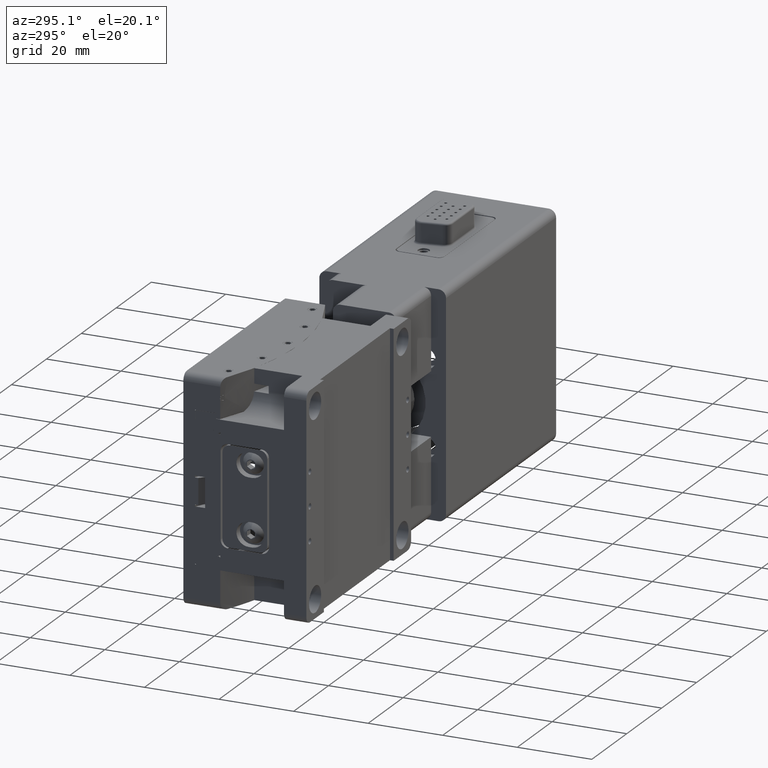
[diagram: clean part render]
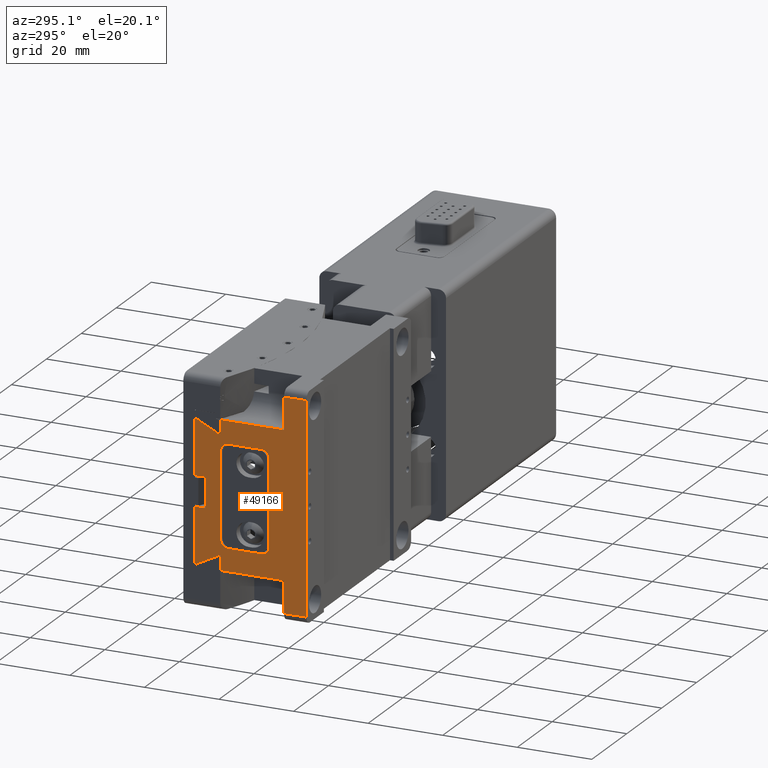
[diagram: same view with one face highlighted and labeled with its STEP entity id]
A machine part, auxiliary view. The second image highlights one B-rep face of the part: STEP entity #49166.
In plain terms, the highlighted planar face has unit normal (1, 0, -0).
Its self-contained STEP definition (entity closure, byte-faithful):
#384 = CARTESIAN_POINT ( 'NONE',  ( -30.00000000000000000, 29.82876183118324300, 18.79160260829803500 ) ) ;
#1066 = VERTEX_POINT ( 'NONE', #33756 ) ;
#1255 = CARTESIAN_POINT ( 'NONE',  ( -29.99999999999999600, 29.88691310044199100, 4.143132096829782900 ) ) ;
#1349 = B_SPLINE_CURVE_WITH_KNOTS ( 'NONE', 3,
 ( #28650, #1255, #32548, #9271, #36432, #13207 ),
 .UNSPECIFIED., .F., .F.,
 ( 4, 2, 4 ),
 ( 0.0000000000000000000, 0.0001680203975728009100, 0.0003360407951456018300 ),
 .UNSPECIFIED. ) ;
#1402 = EDGE_CURVE ( 'NONE', #34404, #7965, #38855, .T. ) ;
#1441 = LINE ( 'NONE', #41858, #31266 ) ;
#1633 = EDGE_CURVE ( 'NONE', #40146, #6005, #12021, .T. ) ;
#1671 = VERTEX_POINT ( 'NONE', #46538 ) ;
#1674 = CARTESIAN_POINT ( 'NONE',  ( -30.00000000000000000, 20.99999999999999300, 13.50000000000000500 ) ) ;
#1770 = CARTESIAN_POINT ( 'NONE',  ( -29.99999999999999600, 23.25954051063884300, 15.62250092524064900 ) ) ;
#2019 = CIRCLE ( 'NONE', #49117, 1.999999999999998200 ) ;
#2155 = CARTESIAN_POINT ( 'NONE',  ( -29.99999999999999600, 27.15202718325955500, 3.931512348025658600 ) ) ;
#2303 = VERTEX_POINT ( 'NONE', #12217 ) ;
#2326 = VECTOR ( 'NONE', #21740, 1000.000000000000000 ) ;
#2358 = CARTESIAN_POINT ( 'NONE',  ( -30.00000000000000000, 23.09173679699934200, 15.70910346561909400 ) ) ;
#2506 = CARTESIAN_POINT ( 'NONE',  ( -30.00000000000000000, 27.20039656257911900, -3.985538086874660400 ) ) ;
#2527 = CARTESIAN_POINT ( 'NONE',  ( -29.99999999999999600, 23.19350035432815500, 15.60883222420186900 ) ) ;
#2783 = CARTESIAN_POINT ( 'NONE',  ( -29.99999999999999600, 23.25954051063884300, 15.62250092524064900 ) ) ;
#2794 = EDGE_CURVE ( 'NONE', #2303, #28126, #33117, .T. ) ;
#2994 = CARTESIAN_POINT ( 'NONE',  ( -30.00000000000000000, 23.00000000000000000, 11.50000000000000700 ) ) ;
#3218 = DIRECTION ( 'NONE',  ( 1.000000000000000000, -0.0000000000000000000, -0.0000000000000000000 ) ) ;
#3242 = CARTESIAN_POINT ( 'NONE',  ( -30.00000000000000000, 29.88691310044199100, 18.65358983848622300 ) ) ;
#3365 = CARTESIAN_POINT ( 'NONE',  ( -30.00000000000000000, 23.23408914589533200, -15.61212078847258200 ) ) ;
#3495 = DIRECTION ( 'NONE',  ( 1.000000000000000000, 0.0000000000000000000, -5.782411586589357400E-017 ) ) ;
#3512 = EDGE_CURVE ( 'NONE', #9710, #15010, #39438, .T. ) ;
#3527 = CARTESIAN_POINT ( 'NONE',  ( -30.00000000000000000, 23.09493877761308400, -15.68534610609588900 ) ) ;
#3854 = LINE ( 'NONE', #32868, #24543 ) ;
#4216 = EDGE_CURVE ( 'NONE', #1066, #22411, #34407, .T. ) ;
#4324 = CARTESIAN_POINT ( 'NONE',  ( -30.00000000000000000, 29.88691310044340800, 18.69216112050026600 ) ) ;
#4420 = ORIENTED_EDGE ( 'NONE', *, *, #21067, .T. ) ;
#4501 = ORIENTED_EDGE ( 'NONE', *, *, #17549, .T. ) ;
#4905 = ORIENTED_EDGE ( 'NONE', *, *, #10533, .T. ) ;
#4942 = CARTESIAN_POINT ( 'NONE',  ( -30.00000000000000000, 23.09173679699934200, 15.70910346561909400 ) ) ;
#5011 = EDGE_CURVE ( 'NONE', #45067, #20928, #13636, .T. ) ;
#5658 = CARTESIAN_POINT ( 'NONE',  ( -30.00000000000000000, 27.44304595805752800, -17.76968412633774400 ) ) ;
#5786 = CARTESIAN_POINT ( 'NONE',  ( -30.00000000000000000, 27.14697859560325100, 3.900000000000000400 ) ) ;
#5813 = B_SPLINE_CURVE_WITH_KNOTS ( 'NONE', 3,
 ( #36763, #40678, #17448, #44593, #21360, #48495 ),
 .UNSPECIFIED., .F., .F.,
 ( 4, 2, 4 ),
 ( 0.0000000000000000000, 0.0002271808861381536100, 0.0004543617722763072200 ),
 .UNSPECIFIED. ) ;
#6005 = VERTEX_POINT ( 'NONE', #49323 ) ;
#6075 = CARTESIAN_POINT ( 'NONE',  ( -29.99999999999999600, 27.14743167860126100, 3.908925829503537000 ) ) ;
#6256 = CARTESIAN_POINT ( 'NONE',  ( -30.00000000000000000, 27.14881925433392200, -3.920576989425599700 ) ) ;
#6272 = CARTESIAN_POINT ( 'NONE',  ( -29.99999999999999600, 23.09706905963156500, 15.67859393707867900 ) ) ;
#6393 = ORIENTED_EDGE ( 'NONE', *, *, #6856, .T. ) ;
#6410 = EDGE_CURVE ( 'NONE', #20928, #40146, #28082, .T. ) ;
#6414 = CARTESIAN_POINT ( 'NONE',  ( -30.00000000000000000, 27.22274025308125200, -3.994304341477762600 ) ) ;
#6426 = CARTESIAN_POINT ( 'NONE',  ( -29.99999999999999600, 23.22039611183534200, 15.60946313980179000 ) ) ;
#6481 = EDGE_CURVE ( 'NONE', #17235, #22411, #8620, .T. ) ;
#6487 = EDGE_CURVE ( 'NONE', #6005, #9710, #43866, .T. ) ;
#6556 = EDGE_CURVE ( 'NONE', #15010, #28166, #32314, .T. ) ;
#6754 = FACE_BOUND ( 'NONE', #46488, .T. ) ;
#6856 = EDGE_CURVE ( 'NONE', #13424, #39945, #29198, .T. ) ;
#7266 = CARTESIAN_POINT ( 'NONE',  ( -30.00000000000000000, 23.20715932703486200, -15.60841626570686600 ) ) ;
#7400 = VECTOR ( 'NONE', #25170, 1000.000000000000000 ) ;
#7448 = CARTESIAN_POINT ( 'NONE',  ( -30.00000000000000000, 23.09173679699362600, -15.70111274314058700 ) ) ;
#7490 = CARTESIAN_POINT ( 'NONE',  ( -30.00000000000000000, 29.85740712550646900, -4.089019606198469600 ) ) ;
#7951 = EDGE_CURVE ( 'NONE', #42011, #7965, #5813, .T. ) ;
#7965 = VERTEX_POINT ( 'NONE', #25412 ) ;
#8042 = CARTESIAN_POINT ( 'NONE',  ( -30.00000000000000000, 11.99999999999999800, 13.49999999999999800 ) ) ;
#8507 = ORIENTED_EDGE ( 'NONE', *, *, #39506, .F. ) ;
#8620 = LINE ( 'NONE', #33460, #33528 ) ;
#9271 = CARTESIAN_POINT ( 'NONE',  ( -29.99999999999998900, 29.77033134698435300, 4.018313011705348700 ) ) ;
#9581 = AXIS2_PLACEMENT_3D ( 'NONE', #40997, #17762, #44895 ) ;
#9600 = DIRECTION ( 'NONE',  ( -0.0000000000000000000, -0.0000000000000000000, -1.000000000000000000 ) ) ;
#9710 = VERTEX_POINT ( 'NONE', #48535 ) ;
#9997 = CARTESIAN_POINT ( 'NONE',  ( -29.99999999999999600, 27.14697859560325800, 3.902979107184100500 ) ) ;
#10175 = CARTESIAN_POINT ( 'NONE',  ( -30.00000000000000000, 27.14697859560325100, -3.910217856197375500 ) ) ;
#10194 = CARTESIAN_POINT ( 'NONE',  ( -29.99999999999999600, 23.10572724413981000, 15.65967184553407400 ) ) ;
#10197 = DIRECTION ( 'NONE',  ( 0.0000000000000000000, -1.000000000000000000, 0.0000000000000000000 ) ) ;
#10237 = EDGE_CURVE ( 'NONE', #28126, #1066, #13924, .T. ) ;
#10344 = CARTESIAN_POINT ( 'NONE',  ( -30.00000000000000000, 27.24778222158201000, -4.000000000000000000 ) ) ;
#10362 = CARTESIAN_POINT ( 'NONE',  ( -29.99999999999999600, 23.24737415264343100, 15.61707600829463900 ) ) ;
#10533 = EDGE_CURVE ( 'NONE', #18400, #38058, #34490, .T. ) ;
#11120 = VECTOR ( 'NONE', #25486, 1000.000000000000000 ) ;
#11202 = CARTESIAN_POINT ( 'NONE',  ( -30.00000000000000000, 23.17988247154138300, -15.61137561039743300 ) ) ;
#11428 = CARTESIAN_POINT ( 'NONE',  ( -30.00000000000000000, 29.88691310044199100, -4.200000000000000200 ) ) ;
#11739 = EDGE_CURVE ( 'NONE', #1671, #33988, #1441, .T. ) ;
#11821 = ORIENTED_EDGE ( 'NONE', *, *, #36403, .T. ) ;
#12021 = CIRCLE ( 'NONE', #47819, 2.000000000000000000 ) ;
#12217 = CARTESIAN_POINT ( 'NONE',  ( -30.00000000000000000, 0.0000000000000000000, -27.99999999999999600 ) ) ;
#12402 = EDGE_CURVE ( 'NONE', #24706, #35753, #20227, .T. ) ;
#12454 = VECTOR ( 'NONE', #43407, 1000.000000000000000 ) ;
#12704 = CARTESIAN_POINT ( 'NONE',  ( -30.00000000000000000, 23.00000000000000000, 11.50000000000000700 ) ) ;
#12852 = EDGE_CURVE ( 'NONE', #18370, #45067, #41992, .T. ) ;
#12884 = VECTOR ( 'NONE', #41263, 1000.000000000000000 ) ;
#13061 = ORIENTED_EDGE ( 'NONE', *, *, #12402, .T. ) ;
#13094 = EDGE_CURVE ( 'NONE', #18400, #39945, #29502, .T. ) ;
#13207 = CARTESIAN_POINT ( 'NONE',  ( -29.99999999999999600, 29.65733414985710000, 4.000000000000003600 ) ) ;
#13339 = VERTEX_POINT ( 'NONE', #31803 ) ;
#13424 = VERTEX_POINT ( 'NONE', #4942 ) ;
#13636 = CIRCLE ( 'NONE', #48076, 1.999999999999998200 ) ;
#13757 = CARTESIAN_POINT ( 'NONE',  ( -29.99999999999999600, 27.21877876830454900, 3.993000038722833300 ) ) ;
#13818 = CARTESIAN_POINT ( 'NONE',  ( -30.00000000000000000, 6.000000000000001800, -30.00000000000000000 ) ) ;
#13846 = ORIENTED_EDGE ( 'NONE', *, *, #42181, .T. ) ;
#13924 = LINE ( 'NONE', #17817, #2326 ) ;
#14019 = CARTESIAN_POINT ( 'NONE',  ( -30.00000000000000000, 23.25954051063885000, -15.62250092524066700 ) ) ;
#14095 = CARTESIAN_POINT ( 'NONE',  ( -30.00000000000000000, 27.15227602506078600, -3.930192358446711300 ) ) ;
#14099 = VECTOR ( 'NONE', #45320, 1000.000000000000000 ) ;
#14115 = CARTESIAN_POINT ( 'NONE',  ( -29.99999999999999600, 23.11874681794241900, 15.64312259882215100 ) ) ;
#14284 = CARTESIAN_POINT ( 'NONE',  ( -29.99999999999999600, 23.25559443816881000, 15.62046495429304600 ) ) ;
#14286 = CARTESIAN_POINT ( 'NONE',  ( -30.00000000000000000, 4.959819536546780600E-015, -13.50000000000000000 ) ) ;
#14373 = CARTESIAN_POINT ( 'NONE',  ( -29.99999999999999600, 29.54263380973594300, 18.82679491924318100 ) ) ;
#14933 = CARTESIAN_POINT ( 'NONE',  ( -30.00000000000000000, 29.88691310044199100, 1.734723475976807100E-015 ) ) ;
#14942 = CARTESIAN_POINT ( 'NONE',  ( -30.00000000000000400, 23.24745365342869600, -15.61626472701709500 ) ) ;
#15010 = VERTEX_POINT ( 'NONE', #31979 ) ;
#15110 = CARTESIAN_POINT ( 'NONE',  ( -30.00000000000000000, 23.15268420370234600, -15.61912824753549100 ) ) ;
#15332 = CARTESIAN_POINT ( 'NONE',  ( -30.00000000000000000, 23.09173679699935600, -15.70910346561910800 ) ) ;
#15419 = CARTESIAN_POINT ( 'NONE',  ( -29.99999999999999600, 27.26051668700183600, 4.000000000000003600 ) ) ;
#15483 = VECTOR ( 'NONE', #44554, 1000.000000000000000 ) ;
#15877 = EDGE_LOOP ( 'NONE', ( #8507, #39351, #46351, #13846, #26696, #4501, #13061, #41607, #28474, #47377, #17009, #20400, #11821, #40325, #33817, #39837, #16934, #33547, #38172, #24862, #4420, #6393, #23758, #4905 ) ) ;
#15898 = CARTESIAN_POINT ( 'NONE',  ( -29.99999999999999600, 29.69444925220425100, 18.86224312926300000 ) ) ;
#16220 = CARTESIAN_POINT ( 'NONE',  ( -30.00000000000000000, 0.0000000000000000000, -30.00000000000000000 ) ) ;
#16856 = CARTESIAN_POINT ( 'NONE',  ( -30.00000000000000000, 33.00000000000000000, -4.000000000000000000 ) ) ;
#16906 = CARTESIAN_POINT ( 'NONE',  ( -30.00000000000000000, 20.99999999999999300, 11.50000000000000700 ) ) ;
#16934 = ORIENTED_EDGE ( 'NONE', *, *, #2794, .T. ) ;
#17009 = ORIENTED_EDGE ( 'NONE', *, *, #1402, .F. ) ;
#17235 = VERTEX_POINT ( 'NONE', #35835 ) ;
#17448 = CARTESIAN_POINT ( 'NONE',  ( -30.00000000000000400, 29.83254370323254200, -18.79953175493246700 ) ) ;
#17549 = EDGE_CURVE ( 'NONE', #28870, #24706, #40414, .T. ) ;
#17669 = CARTESIAN_POINT ( 'NONE',  ( -29.99999999999999600, 27.19264885288599100, 3.981249148261956500 ) ) ;
#17762 = DIRECTION ( 'NONE',  ( 1.000000000000000000, 0.0000000000000000000, -5.782411586589357400E-017 ) ) ;
#17817 = CARTESIAN_POINT ( 'NONE',  ( -29.99999999999999600, 33.00000000000000000, 28.00000000000000400 ) ) ;
#18021 = CARTESIAN_POINT ( 'NONE',  ( -30.00000000000000000, 27.16086229800093600, -3.948904885500574400 ) ) ;
#18036 = CARTESIAN_POINT ( 'NONE',  ( -29.99999999999999600, 23.13571944744198200, 15.62961470434997400 ) ) ;
#18051 = B_SPLINE_CURVE_WITH_KNOTS ( 'NONE', 3,
 ( #33107, #29204, #36984, #13757, #40897, #17669, #44804, #21593, #48723, #25468, #2155, #29369, #6075, #33259, #9997, #37150 ),
 .UNSPECIFIED., .F., .F.,
 ( 4, 3, 3, 3, 3, 4 ),
 ( 0.0000000000000000000, 4.232083783508182500E-005, 8.482479749523609500E-005, 0.0001240991933918049000, 0.0001582313440603011600, 0.0001670172764995516800 ),
 .UNSPECIFIED. ) ;
#18370 = VERTEX_POINT ( 'NONE', #29263 ) ;
#18400 = VERTEX_POINT ( 'NONE', #48786 ) ;
#18640 = DIRECTION ( 'NONE',  ( 0.0000000000000000000, -1.000000000000000000, 0.0000000000000000000 ) ) ;
#18872 = CARTESIAN_POINT ( 'NONE',  ( -30.00000000000000000, 23.25954051063885000, -15.62250092524066700 ) ) ;
#19043 = CARTESIAN_POINT ( 'NONE',  ( -30.00000000000000000, 23.12932087733462400, -15.63331503842064800 ) ) ;
#19367 = LINE ( 'NONE', #38381, #20597 ) ;
#20128 = VECTOR ( 'NONE', #43618, 1000.000000000000000 ) ;
#20207 = CARTESIAN_POINT ( 'NONE',  ( -30.00000000000000000, 33.00000000000000000, -19.49999999999998600 ) ) ;
#20227 = LINE ( 'NONE', #16856, #49995 ) ;
#20400 = ORIENTED_EDGE ( 'NONE', *, *, #31159, .T. ) ;
#20554 = CARTESIAN_POINT ( 'NONE',  ( -30.00000000000000000, 33.00000000000000000, -27.99999999999999600 ) ) ;
#20597 = VECTOR ( 'NONE', #42293, 1000.000000000000000 ) ;
#20828 = DIRECTION ( 'NONE',  ( 0.0000000000000000000, 0.0000000000000000000, 1.000000000000000000 ) ) ;
#20928 = VERTEX_POINT ( 'NONE', #1674 ) ;
#21067 = EDGE_CURVE ( 'NONE', #17235, #13424, #19367, .T. ) ;
#21120 = CARTESIAN_POINT ( 'NONE',  ( -30.00000000000000000, 0.0000000000000000000, 13.50000000000000000 ) ) ;
#21178 = CARTESIAN_POINT ( 'NONE',  ( -30.00000000000000000, 25.34913797301106400, -16.70062601236980600 ) ) ;
#21360 = CARTESIAN_POINT ( 'NONE',  ( -30.00000000000000400, 29.61111928573976800, -18.86127632271744800 ) ) ;
#21593 = CARTESIAN_POINT ( 'NONE',  ( -29.99999999999999600, 27.17188513277771000, 3.963679154895036300 ) ) ;
#21609 = CARTESIAN_POINT ( 'NONE',  ( -30.00000000000000000, 29.88691310044199100, 1.734723475976807100E-015 ) ) ;
#21740 = DIRECTION ( 'NONE',  ( -0.0000000000000000000, 1.000000000000000000, -0.0000000000000000000 ) ) ;
#21948 = CARTESIAN_POINT ( 'NONE',  ( -30.00000000000000000, 27.17376707764545100, -3.965323681520340800 ) ) ;
#21964 = CARTESIAN_POINT ( 'NONE',  ( -29.99999999999999600, 23.15645169965605600, 15.61778865663743200 ) ) ;
#22411 = VERTEX_POINT ( 'NONE', #39273 ) ;
#22717 = LINE ( 'NONE', #21609, #11120 ) ;
#22721 = CARTESIAN_POINT ( 'NONE',  ( -29.99999999999999600, 0.0000000000000000000, 27.99999999999998900 ) ) ;
#22947 = CARTESIAN_POINT ( 'NONE',  ( -30.00000000000000000, 23.11089557163788700, -15.65313367206659700 ) ) ;
#23001 = CARTESIAN_POINT ( 'NONE',  ( -29.99999999999999600, 11.99999999999999800, 11.49999999999999800 ) ) ;
#23719 = CARTESIAN_POINT ( 'NONE',  ( -29.99999999999999600, 29.79782660306298300, 18.81532885606260300 ) ) ;
#23758 = ORIENTED_EDGE ( 'NONE', *, *, #13094, .F. ) ;
#24090 = VECTOR ( 'NONE', #37059, 1000.000000000000000 ) ;
#24099 = DIRECTION ( 'NONE',  ( 0.0000000000000000000, 1.000000000000000000, 0.0000000000000000000 ) ) ;
#24432 = DIRECTION ( 'NONE',  ( 0.0000000000000000000, -1.000000000000000000, 0.0000000000000000000 ) ) ;
#24543 = VECTOR ( 'NONE', #9600, 1000.000000000000000 ) ;
#24610 = ORIENTED_EDGE ( 'NONE', *, *, #5011, .T. ) ;
#24706 = VERTEX_POINT ( 'NONE', #27951 ) ;
#24862 = ORIENTED_EDGE ( 'NONE', *, *, #6481, .F. ) ;
#25114 = VERTEX_POINT ( 'NONE', #26885 ) ;
#25170 = DIRECTION ( 'NONE',  ( 0.0000000000000000000, -1.000000000000000000, 8.260587980841941200E-017 ) ) ;
#25412 = CARTESIAN_POINT ( 'NONE',  ( -30.00000000000000000, 29.54263380973818800, -18.82679491924431000 ) ) ;
#25468 = CARTESIAN_POINT ( 'NONE',  ( -29.99999999999999600, 27.15727166924127500, 3.941608930574569000 ) ) ;
#25486 = DIRECTION ( 'NONE',  ( 0.0000000000000000000, 0.0000000000000000000, 1.000000000000000000 ) ) ;
#25668 = CARTESIAN_POINT ( 'NONE',  ( -29.99999999999999300, 23.09173679699935600, 15.69877946791936200 ) ) ;
#25719 = EDGE_CURVE ( 'NONE', #32452, #25114, #30087, .T. ) ;
#25787 = EDGE_CURVE ( 'NONE', #41146, #2303, #45840, .T. ) ;
#25814 = CARTESIAN_POINT ( 'NONE',  ( -30.00000000000000000, 27.19059704443751700, -3.978792482243609800 ) ) ;
#25835 = CARTESIAN_POINT ( 'NONE',  ( -29.99999999999999600, 23.18025715318055200, 15.61059743975138200 ) ) ;
#26082 = CARTESIAN_POINT ( 'NONE',  ( -29.99999999999999600, 25.34913797301031500, 16.70062601236941900 ) ) ;
#26229 = EDGE_CURVE ( 'NONE', #33362, #28870, #3854, .T. ) ;
#26274 = VECTOR ( 'NONE', #34278, 1000.000000000000000 ) ;
#26510 = CARTESIAN_POINT ( 'NONE',  ( -30.00000000000000000, 20.99999999999999600, -11.50000000000000000 ) ) ;
#26696 = ORIENTED_EDGE ( 'NONE', *, *, #26229, .T. ) ;
#26754 = CARTESIAN_POINT ( 'NONE',  ( -30.00000000000000000, 20.99999999999999600, -13.49999999999999100 ) ) ;
#26796 = CARTESIAN_POINT ( 'NONE',  ( -30.00000000000000000, 11.99999999999999800, -11.49999999999999500 ) ) ;
#26828 = CARTESIAN_POINT ( 'NONE',  ( -30.00000000000000000, 23.09810027220033000, -15.67378801730052000 ) ) ;
#26884 = DIRECTION ( 'NONE',  ( 0.0000000000000000000, 0.0000000000000000000, -1.000000000000000000 ) ) ;
#26885 = CARTESIAN_POINT ( 'NONE',  ( -30.00000000000000000, 23.09173679699935600, -19.49999999999998600 ) ) ;
#27502 = LINE ( 'NONE', #14933, #26274 ) ;
#27613 = CARTESIAN_POINT ( 'NONE',  ( -29.99999999999999600, 29.87396476347946700, 18.72934429621198800 ) ) ;
#27882 = ORIENTED_EDGE ( 'NONE', *, *, #39278, .T. ) ;
#27914 = DIRECTION ( 'NONE',  ( 5.782411586589357400E-017, -0.0000000000000000000, 1.000000000000000000 ) ) ;
#27951 = CARTESIAN_POINT ( 'NONE',  ( -30.00000000000000000, 27.26051668700183600, -4.000000000000000000 ) ) ;
#28082 = LINE ( 'NONE', #21120, #7400 ) ;
#28126 = VERTEX_POINT ( 'NONE', #22721 ) ;
#28166 = VERTEX_POINT ( 'NONE', #26754 ) ;
#28474 = ORIENTED_EDGE ( 'NONE', *, *, #39637, .F. ) ;
#28650 = CARTESIAN_POINT ( 'NONE',  ( -30.00000000000000000, 29.88691310044199100, 4.200000000000000200 ) ) ;
#28870 = VERTEX_POINT ( 'NONE', #33619 ) ;
#29013 = VERTEX_POINT ( 'NONE', #15332 ) ;
#29198 = B_SPLINE_CURVE_WITH_KNOTS ( 'NONE', 3,
 ( #2358, #25668, #48929, #6272, #33458, #10194, #37362, #14115, #41261, #18036, #45162, #21964, #49092, #25835, #2527, #29733, #6426, #33630, #10362, #37529, #14284, #41432 ),
 .UNSPECIFIED., .F., .F.,
 ( 4, 3, 3, 3, 3, 3, 3, 4 ),
 ( 0.0000000000000000000, 3.097199309920884400E-005, 6.185538687335600600E-005, 9.404399814627161700E-005, 0.0001295067994442872100, 0.0001686182990718869000, 0.0002103113221555644000, 0.0002234855089820730100 ),
 .UNSPECIFIED. ) ;
#29204 = CARTESIAN_POINT ( 'NONE',  ( -29.99999999999999600, 27.24640974105680900, 4.000000000000000000 ) ) ;
#29263 = CARTESIAN_POINT ( 'NONE',  ( -30.00000000000000000, 22.99999999999999600, -11.50000000000000000 ) ) ;
#29369 = CARTESIAN_POINT ( 'NONE',  ( -29.99999999999999600, 27.14858310737720300, 3.920244832293242600 ) ) ;
#29502 = B_SPLINE_CURVE_WITH_KNOTS ( 'NONE', 3,
 ( #14373, #37627, #26082, #2783 ),
 .UNSPECIFIED., .F., .F.,
 ( 4, 4 ),
 ( 0.02525410327558656000, 0.03230437017914779300 ),
 .UNSPECIFIED. ) ;
#29720 = CARTESIAN_POINT ( 'NONE',  ( -30.00000000000000000, 27.21137911414751900, -3.990774715467187300 ) ) ;
#29733 = CARTESIAN_POINT ( 'NONE',  ( -29.99999999999999600, 23.20653068523832000, 15.60913788724337800 ) ) ;
#29797 = CARTESIAN_POINT ( 'NONE',  ( -30.00000000000000000, 6.000000000000001800, -27.99999999999999600 ) ) ;
#30087 = LINE ( 'NONE', #20207, #31302 ) ;
#30414 = DIRECTION ( 'NONE',  ( 0.0000000000000000000, 0.0000000000000000000, 1.000000000000000000 ) ) ;
#30560 = CARTESIAN_POINT ( 'NONE',  ( -30.00000000000000000, 23.22061521497804300, -15.61026728607491000 ) ) ;
#30702 = DIRECTION ( 'NONE',  ( 0.0000000000000000000, 0.0000000000000000000, -1.000000000000000000 ) ) ;
#30734 = CARTESIAN_POINT ( 'NONE',  ( -30.00000000000000000, 23.09283051472650400, -15.69305369153518900 ) ) ;
#30778 = CARTESIAN_POINT ( 'NONE',  ( -30.00000000000000400, 29.77005805140936400, -4.018198510408842200 ) ) ;
#31159 = EDGE_CURVE ( 'NONE', #34404, #29013, #35311, .T. ) ;
#31266 = VECTOR ( 'NONE', #18640, 1000.000000000000000 ) ;
#31302 = VECTOR ( 'NONE', #24099, 1000.000000000000000 ) ;
#31515 = CARTESIAN_POINT ( 'NONE',  ( -30.00000000000000000, 29.88691310044199100, 18.65358983848622300 ) ) ;
#31803 = CARTESIAN_POINT ( 'NONE',  ( -30.00000000000000000, 29.88691310044199100, -4.200000000000000200 ) ) ;
#31979 = CARTESIAN_POINT ( 'NONE',  ( -30.00000000000000000, 11.99999999999999800, -13.49999999999999500 ) ) ;
#32092 = CARTESIAN_POINT ( 'NONE',  ( -30.00000000000000000, 29.88691310044199100, -18.65358983848622300 ) ) ;
#32314 = LINE ( 'NONE', #14286, #14099 ) ;
#32452 = VERTEX_POINT ( 'NONE', #46113 ) ;
#32548 = CARTESIAN_POINT ( 'NONE',  ( -29.99999999999999300, 29.85764160691937300, 4.089317425709246800 ) ) ;
#32853 = CARTESIAN_POINT ( 'NONE',  ( -30.00000000000000000, 23.25954051063885000, -15.62250092524066700 ) ) ;
#32868 = CARTESIAN_POINT ( 'NONE',  ( -30.00000000000000000, 27.14697859560325100, 1.734723475976807100E-015 ) ) ;
#32924 = VECTOR ( 'NONE', #27914, 1000.000000000000000 ) ;
#33107 = CARTESIAN_POINT ( 'NONE',  ( -29.99999999999999600, 27.26051668700183600, 4.000000000000003600 ) ) ;
#33117 = LINE ( 'NONE', #16220, #12454 ) ;
#33259 = CARTESIAN_POINT ( 'NONE',  ( -29.99999999999999600, 27.14713018399950400, 3.905962017664118300 ) ) ;
#33362 = VERTEX_POINT ( 'NONE', #5786 ) ;
#33458 = CARTESIAN_POINT ( 'NONE',  ( -29.99999999999999600, 23.10054578452553600, 15.66889056364110600 ) ) ;
#33460 = CARTESIAN_POINT ( 'NONE',  ( -29.99999999999999600, 33.00000000000000000, 19.49999999999999600 ) ) ;
#33528 = VECTOR ( 'NONE', #10197, 1000.000000000000000 ) ;
#33547 = ORIENTED_EDGE ( 'NONE', *, *, #10237, .T. ) ;
#33611 = CARTESIAN_POINT ( 'NONE',  ( -30.00000000000000000, 27.23490134584813300, -3.998082493439232300 ) ) ;
#33619 = CARTESIAN_POINT ( 'NONE',  ( -30.00000000000000000, 27.14697859560325100, -3.900000000000000400 ) ) ;
#33630 = CARTESIAN_POINT ( 'NONE',  ( -29.99999999999999600, 23.23440927845501500, 15.61214976416522200 ) ) ;
#33756 = CARTESIAN_POINT ( 'NONE',  ( -29.99999999999999600, 6.000000000000001800, 28.00000000000000400 ) ) ;
#33817 = ORIENTED_EDGE ( 'NONE', *, *, #40227, .F. ) ;
#33988 = VERTEX_POINT ( 'NONE', #15419 ) ;
#34132 = ORIENTED_EDGE ( 'NONE', *, *, #12852, .T. ) ;
#34278 = DIRECTION ( 'NONE',  ( 0.0000000000000000000, 0.0000000000000000000, 1.000000000000000000 ) ) ;
#34404 = VERTEX_POINT ( 'NONE', #14019 ) ;
#34407 = LINE ( 'NONE', #13818, #24090 ) ;
#34455 = CARTESIAN_POINT ( 'NONE',  ( -30.00000000000000000, 23.19321679287725900, -15.60879044671714400 ) ) ;
#34490 = B_SPLINE_CURVE_WITH_KNOTS ( 'NONE', 3,
 ( #46952, #43077, #15898, #23719, #384, #27613, #4324, #31515 ),
 .UNSPECIFIED., .F., .F.,
 ( 4, 2, 2, 4 ),
 ( 1.229575132451848200E-016, 0.0002270892811216697900, 0.0003406339216824501000, 0.0004541785622432304500 ),
 .UNSPECIFIED. ) ;
#34629 = CARTESIAN_POINT ( 'NONE',  ( -30.00000000000000000, 23.09173679699935600, -15.70910346561910800 ) ) ;
#34675 = CARTESIAN_POINT ( 'NONE',  ( -30.00000000000000400, 29.88691310044198700, -4.142803267439763500 ) ) ;
#35311 = B_SPLINE_CURVE_WITH_KNOTS ( 'NONE', 3,
 ( #18872, #14942, #3365, #30560, #7266, #34455, #11202, #38378, #15110, #42289, #19043, #46158, #22947, #50113, #26828, #3527, #30734, #7448, #34629 ),
 .UNSPECIFIED., .F., .F.,
 ( 4, 3, 3, 3, 3, 3, 4 ),
 ( 3.878959614448864200E-018, 4.080245788590064300E-005, 8.152369017308889900E-005, 0.0001234895705902233300, 0.0001636548348799668400, 0.0001996372618846926300, 0.0002233971095841474100 ),
 .UNSPECIFIED. ) ;
#35386 = VERTEX_POINT ( 'NONE', #37316 ) ;
#35753 = VERTEX_POINT ( 'NONE', #41171 ) ;
#35835 = CARTESIAN_POINT ( 'NONE',  ( -29.99999999999999300, 23.09173679699934200, 19.49999999999999300 ) ) ;
#35890 = ORIENTED_EDGE ( 'NONE', *, *, #6487, .T. ) ;
#36403 = EDGE_CURVE ( 'NONE', #29013, #25114, #46447, .T. ) ;
#36432 = CARTESIAN_POINT ( 'NONE',  ( -30.00000000000000000, 29.71401084794209900, 4.000000000000001800 ) ) ;
#36740 = CARTESIAN_POINT ( 'NONE',  ( -30.00000000000000000, 29.54263380973818800, -18.82679491924431000 ) ) ;
#36763 = CARTESIAN_POINT ( 'NONE',  ( -30.00000000000000000, 29.88691310044199100, -18.65358983848622300 ) ) ;
#36984 = CARTESIAN_POINT ( 'NONE',  ( -29.99999999999999600, 27.23210169509707900, 3.997637445926949300 ) ) ;
#37059 = DIRECTION ( 'NONE',  ( -5.782411586589357400E-017, 0.0000000000000000000, -1.000000000000000000 ) ) ;
#37150 = CARTESIAN_POINT ( 'NONE',  ( -30.00000000000000000, 27.14697859560325100, 3.900000000000000400 ) ) ;
#37316 = CARTESIAN_POINT ( 'NONE',  ( -30.00000000000000000, 29.88691310044199100, 4.200000000000000200 ) ) ;
#37345 = CARTESIAN_POINT ( 'NONE',  ( -30.00000000000000000, 27.14697859560325100, -3.900000000000000400 ) ) ;
#37362 = CARTESIAN_POINT ( 'NONE',  ( -29.99999999999999600, 23.11210041650447900, 15.65157087361290400 ) ) ;
#37364 = CARTESIAN_POINT ( 'NONE',  ( -30.00000000000000000, 9.999999999999998200, -13.49999999999999500 ) ) ;
#37511 = CARTESIAN_POINT ( 'NONE',  ( -30.00000000000000000, 27.26051668700183600, -4.000000000000000000 ) ) ;
#37529 = CARTESIAN_POINT ( 'NONE',  ( -29.99999999999999600, 23.25152495782267400, 15.61865318361847300 ) ) ;
#37627 = CARTESIAN_POINT ( 'NONE',  ( -29.99999999999999600, 27.44304595805603200, 17.76968412633697300 ) ) ;
#38058 = VERTEX_POINT ( 'NONE', #3242 ) ;
#38172 = ORIENTED_EDGE ( 'NONE', *, *, #4216, .T. ) ;
#38378 = CARTESIAN_POINT ( 'NONE',  ( -30.00000000000000000, 23.16616473379193800, -15.61403510813356400 ) ) ;
#38381 = CARTESIAN_POINT ( 'NONE',  ( -30.00000000000000000, 23.09173679699934200, 1.734723475976807100E-015 ) ) ;
#38571 = AXIS2_PLACEMENT_3D ( 'NONE', #26796, #3495, #30702 ) ;
#38855 = B_SPLINE_CURVE_WITH_KNOTS ( 'NONE', 3,
 ( #32853, #21178, #5658, #36740 ),
 .UNSPECIFIED., .F., .F.,
 ( 4, 4 ),
 ( 0.03234912094251470700, 0.03940244028462458500 ),
 .UNSPECIFIED. ) ;
#39273 = CARTESIAN_POINT ( 'NONE',  ( -29.99999999999999600, 6.000000000000001800, 19.49999999999999300 ) ) ;
#39278 = EDGE_CURVE ( 'NONE', #28166, #18370, #2019, .T. ) ;
#39351 = ORIENTED_EDGE ( 'NONE', *, *, #46651, .T. ) ;
#39438 = CIRCLE ( 'NONE', #38571, 2.000000000000000000 ) ;
#39506 = EDGE_CURVE ( 'NONE', #35386, #38058, #22717, .T. ) ;
#39637 = EDGE_CURVE ( 'NONE', #42011, #13339, #27502, .T. ) ;
#39837 = ORIENTED_EDGE ( 'NONE', *, *, #25787, .T. ) ;
#39945 = VERTEX_POINT ( 'NONE', #1770 ) ;
#40146 = VERTEX_POINT ( 'NONE', #8042 ) ;
#40227 = EDGE_CURVE ( 'NONE', #41146, #32452, #42039, .T. ) ;
#40325 = ORIENTED_EDGE ( 'NONE', *, *, #25719, .F. ) ;
#40414 = B_SPLINE_CURVE_WITH_KNOTS ( 'NONE', 3,
 ( #37345, #10175, #6256, #14095, #41246, #18021, #45144, #21948, #49073, #25814, #2506, #29720, #6414, #33611, #10344, #37511 ),
 .UNSPECIFIED., .F., .F.,
 ( 4, 3, 3, 3, 3, 4 ),
 ( 0.0000000000000000000, 3.065356859212759100E-005, 6.120872440986161900E-005, 9.319398957987537300E-005, 0.0001288389208177769400, 0.0001670119921630385300 ),
 .UNSPECIFIED. ) ;
#40498 = PLANE ( 'NONE',  #9581 ) ;
#40638 = CARTESIAN_POINT ( 'NONE',  ( -30.00000000000000000, 23.09173679699935600, 1.734723475976807100E-015 ) ) ;
#40678 = CARTESIAN_POINT ( 'NONE',  ( -30.00000000000000000, 29.88691310044199100, -18.73048110181888900 ) ) ;
#40897 = CARTESIAN_POINT ( 'NONE',  ( -29.99999999999999600, 27.20542408084086000, 3.988351576352872700 ) ) ;
#40997 = CARTESIAN_POINT ( 'NONE',  ( -30.00000000000000000, 33.00000000000000000, -30.00000000000000000 ) ) ;
#41146 = VERTEX_POINT ( 'NONE', #29797 ) ;
#41171 = CARTESIAN_POINT ( 'NONE',  ( -30.00000000000000000, 29.65733414985710700, -4.000000000000000000 ) ) ;
#41246 = CARTESIAN_POINT ( 'NONE',  ( -30.00000000000000000, 27.15572656301601000, -3.939790390362158500 ) ) ;
#41261 = CARTESIAN_POINT ( 'NONE',  ( -29.99999999999999600, 23.12684058136460400, 15.63567389044996700 ) ) ;
#41263 = DIRECTION ( 'NONE',  ( -0.0000000000000000000, -0.0000000000000000000, -1.000000000000000000 ) ) ;
#41432 = CARTESIAN_POINT ( 'NONE',  ( -29.99999999999999600, 23.25954051063884300, 15.62250092524064900 ) ) ;
#41607 = ORIENTED_EDGE ( 'NONE', *, *, #50299, .T. ) ;
#41858 = CARTESIAN_POINT ( 'NONE',  ( -29.99999999999999600, 33.00000000000000000, 4.000000000000003600 ) ) ;
#41992 = LINE ( 'NONE', #12704, #20128 ) ;
#42011 = VERTEX_POINT ( 'NONE', #32092 ) ;
#42039 = LINE ( 'NONE', #47263, #32924 ) ;
#42181 = EDGE_CURVE ( 'NONE', #33988, #33362, #18051, .T. ) ;
#42289 = CARTESIAN_POINT ( 'NONE',  ( -30.00000000000000000, 23.14074055336918800, -15.62638072806908700 ) ) ;
#42293 = DIRECTION ( 'NONE',  ( -0.0000000000000000000, -0.0000000000000000000, -1.000000000000000000 ) ) ;
#43077 = CARTESIAN_POINT ( 'NONE',  ( -30.00000000000005000, 29.61125979686019600, 18.86134706794456400 ) ) ;
#43407 = DIRECTION ( 'NONE',  ( 5.782411586589357400E-017, 0.0000000000000000000, 1.000000000000000000 ) ) ;
#43618 = DIRECTION ( 'NONE',  ( 0.0000000000000000000, -1.508455196501570900E-016, 1.000000000000000000 ) ) ;
#43866 = LINE ( 'NONE', #37364, #12884 ) ;
#44008 = DIRECTION ( 'NONE',  ( 0.0000000000000000000, 1.000000000000000000, 0.0000000000000000000 ) ) ;
#44061 = DIRECTION ( 'NONE',  ( 1.000000000000000000, -0.0000000000000000000, -0.0000000000000000000 ) ) ;
#44554 = DIRECTION ( 'NONE',  ( -0.0000000000000000000, -0.0000000000000000000, -1.000000000000000000 ) ) ;
#44593 = CARTESIAN_POINT ( 'NONE',  ( -30.00000000000000000, 29.69441429828360800, -18.86230085746937100 ) ) ;
#44655 = VECTOR ( 'NONE', #24432, 1000.000000000000000 ) ;
#44664 = ORIENTED_EDGE ( 'NONE', *, *, #1633, .T. ) ;
#44732 = ORIENTED_EDGE ( 'NONE', *, *, #3512, .T. ) ;
#44804 = CARTESIAN_POINT ( 'NONE',  ( -29.99999999999999600, 27.18185430869940700, 3.972114943564141400 ) ) ;
#44895 = DIRECTION ( 'NONE',  ( -5.782411586589357400E-017, 0.0000000000000000000, -1.000000000000000000 ) ) ;
#45067 = VERTEX_POINT ( 'NONE', #2994 ) ;
#45144 = CARTESIAN_POINT ( 'NONE',  ( -30.00000000000000000, 27.16716502491632200, -3.956923866873572200 ) ) ;
#45162 = CARTESIAN_POINT ( 'NONE',  ( -29.99999999999999600, 23.14549424682858400, 15.62294410834623000 ) ) ;
#45320 = DIRECTION ( 'NONE',  ( 0.0000000000000000000, 1.000000000000000000, 4.130293990420970900E-016 ) ) ;
#45646 = FACE_OUTER_BOUND ( 'NONE', #15877, .T. ) ;
#45840 = LINE ( 'NONE', #20554, #44655 ) ;
#46113 = CARTESIAN_POINT ( 'NONE',  ( -30.00000000000000000, 6.000000000000001800, -19.49999999999998600 ) ) ;
#46158 = CARTESIAN_POINT ( 'NONE',  ( -30.00000000000000000, 23.11894842275479800, -15.64247321946480400 ) ) ;
#46205 = CARTESIAN_POINT ( 'NONE',  ( -30.00000000000000000, 29.65733414985710700, -4.000000000000000000 ) ) ;
#46341 = ORIENTED_EDGE ( 'NONE', *, *, #6410, .T. ) ;
#46351 = ORIENTED_EDGE ( 'NONE', *, *, #11739, .T. ) ;
#46447 = LINE ( 'NONE', #40638, #15483 ) ;
#46488 = EDGE_LOOP ( 'NONE', ( #46341, #44664, #35890, #44732, #50103, #27882, #34132, #24610 ) ) ;
#46538 = CARTESIAN_POINT ( 'NONE',  ( -29.99999999999999600, 29.65733414985710000, 4.000000000000003600 ) ) ;
#46651 = EDGE_CURVE ( 'NONE', #35386, #1671, #1349, .T. ) ;
#46855 = B_SPLINE_CURVE_WITH_KNOTS ( 'NONE', 3,
 ( #46205, #49984, #30778, #7490, #34675, #11428 ),
 .UNSPECIFIED., .F., .F.,
 ( 4, 2, 4 ),
 ( 0.0000000000000000000, 0.0001673575973544417900, 0.0003347151947088835900 ),
 .UNSPECIFIED. ) ;
#46952 = CARTESIAN_POINT ( 'NONE',  ( -29.99999999999999600, 29.54263380973594300, 18.82679491924318100 ) ) ;
#47263 = CARTESIAN_POINT ( 'NONE',  ( -30.00000000000000000, 6.000000000000001800, -30.00000000000000000 ) ) ;
#47377 = ORIENTED_EDGE ( 'NONE', *, *, #7951, .T. ) ;
#47819 = AXIS2_PLACEMENT_3D ( 'NONE', #23001, #50170, #26884 ) ;
#48076 = AXIS2_PLACEMENT_3D ( 'NONE', #16906, #44061, #20828 ) ;
#48495 = CARTESIAN_POINT ( 'NONE',  ( -30.00000000000000000, 29.54263380973818800, -18.82679491924431000 ) ) ;
#48535 = CARTESIAN_POINT ( 'NONE',  ( -30.00000000000000000, 9.999999999999998200, -11.49999999999999500 ) ) ;
#48723 = CARTESIAN_POINT ( 'NONE',  ( -29.99999999999999600, 27.16329145870706400, 3.953198112332363800 ) ) ;
#48786 = CARTESIAN_POINT ( 'NONE',  ( -29.99999999999999600, 29.54263380973594300, 18.82679491924318100 ) ) ;
#48929 = CARTESIAN_POINT ( 'NONE',  ( -29.99999999999999600, 23.09358674573191200, 15.68831290916468100 ) ) ;
#49073 = CARTESIAN_POINT ( 'NONE',  ( -30.00000000000000000, 27.18179666796656900, -3.972734647621581700 ) ) ;
#49092 = CARTESIAN_POINT ( 'NONE',  ( -29.99999999999999600, 23.16778010134255400, 15.61436654189317400 ) ) ;
#49117 = AXIS2_PLACEMENT_3D ( 'NONE', #26510, #3218, #30414 ) ;
#49166 = ADVANCED_FACE ( 'NONE', ( #6754, #45646 ), #40498, .F. ) ;
#49323 = CARTESIAN_POINT ( 'NONE',  ( -30.00000000000000000, 9.999999999999998200, 11.50000000000000000 ) ) ;
#49984 = CARTESIAN_POINT ( 'NONE',  ( -30.00000000000000000, 29.71422286502570400, -4.000000000000002700 ) ) ;
#49995 = VECTOR ( 'NONE', #44008, 1000.000000000000000 ) ;
#50103 = ORIENTED_EDGE ( 'NONE', *, *, #6556, .T. ) ;
#50113 = CARTESIAN_POINT ( 'NONE',  ( -30.00000000000000000, 23.10367299767301600, -15.66269499467117400 ) ) ;
#50170 = DIRECTION ( 'NONE',  ( 1.000000000000000000, 0.0000000000000000000, -5.782411586589357400E-017 ) ) ;
#50299 = EDGE_CURVE ( 'NONE', #35753, #13339, #46855, .T. ) ;